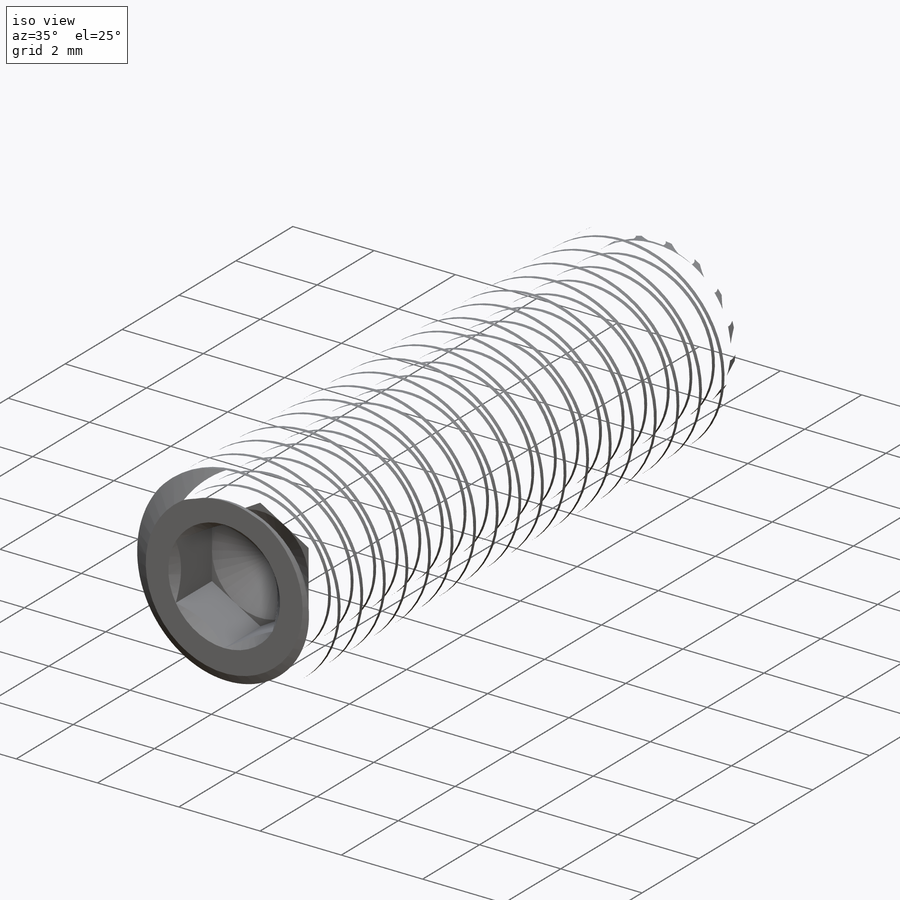
[diagram: iso view]
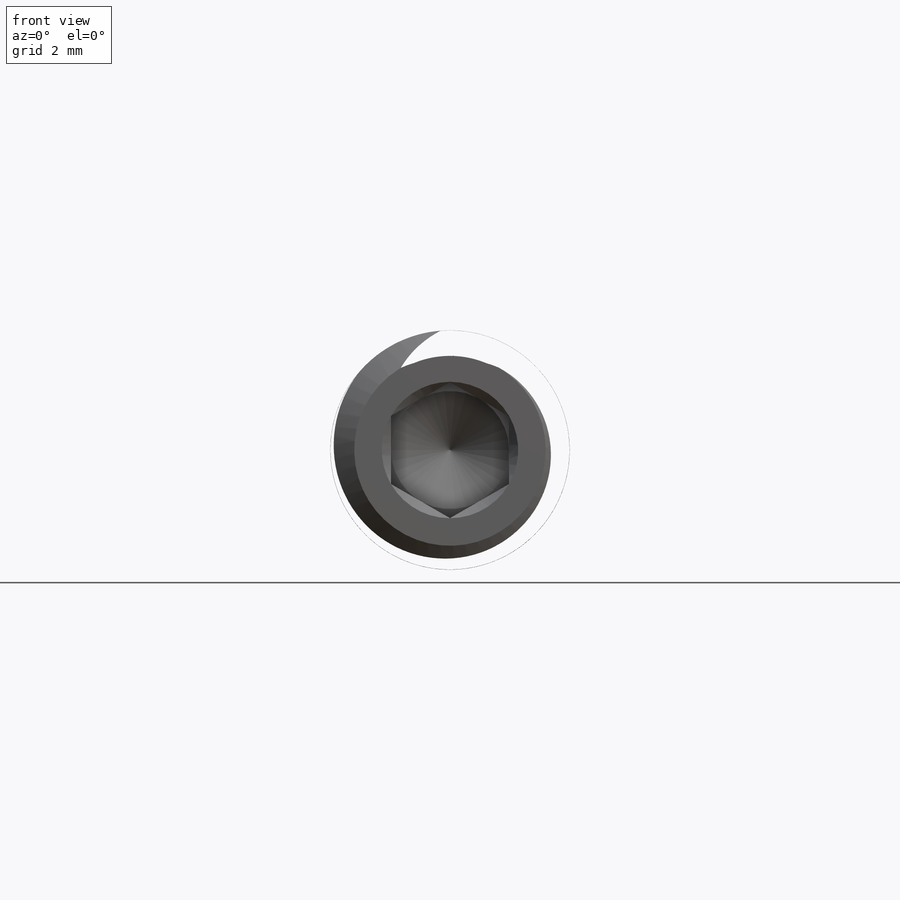
[diagram: front view]
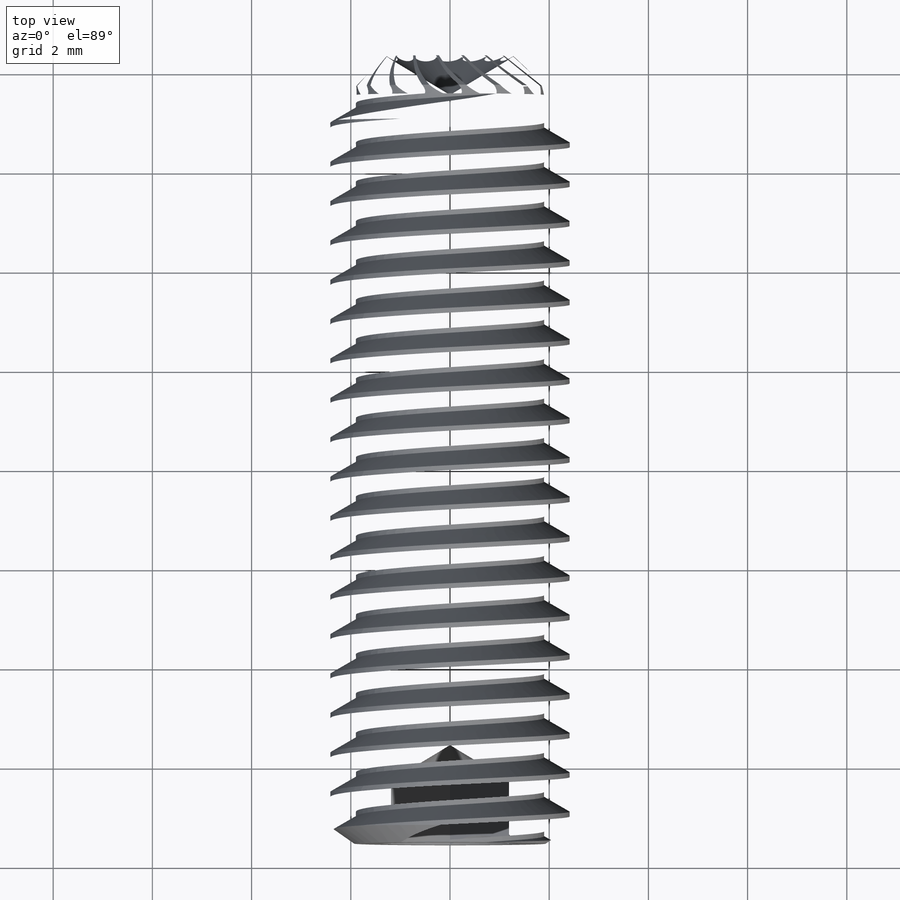
[diagram: top view]
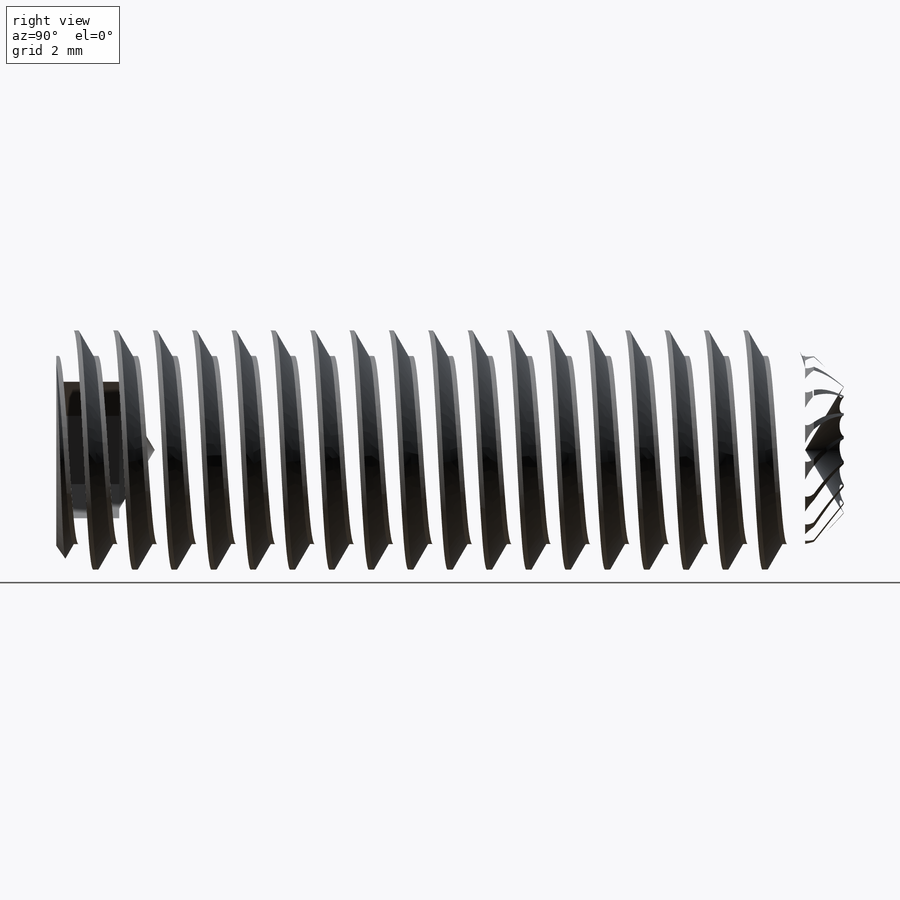
[diagram: right view]
SOLIDWORKS PART (.sldprt)
format: sldprt  version: not decoded by parser v0  size: 1,411,072 bytes
history: native  units: mm
features: sketch x11, cut_extrude x4, plane x2, helix x2, material x1, revolve x1, sweep x1, pattern_circular x1 (+14 scaffold rows collapsed; 3 parser-record rows omitted)
feature tree (40):
  scaffold x14  (default folders/planes/origin — collapsed)
  material  "Alloy Steel"
  sketch  "Sketch1"  dims[c1.Screw Dia=4.826mm c1.Length=15.875mm c1.D3=~0.472649mm c1.Head Angle=35.0deg c1.Cup Point Dia=2.5908mm c1.D5=~1.43605mm c1.Cup Angle=118.0deg c1.D6=1.4986mm c1.Point Angle=45.0deg c1.Head Dia=3.8608mm c1.D1=1.1176mm c1.D2=~1.580525mm c2.D3=1.2954mm c2.D4=1.2954mm c3.D3=1.2954mm c3.D1=~0.778355mm]
  revolve  "Revolve1"  Angle=360deg
  parser-record x3  (decoder bookkeeping rows leaked as tree rows — omitted from the tree; the rows remain in map.json)
  sketch  "Sketch2"  dims[Hex=~2.38125mm]
  cut_extrude  "Cut-Extrude1"  Depth=1.27mm Hex Depth=1.27mm
  sketch  "Sketch3"
  cut_extrude  "Cut-Extrude2"  [1 undecoded]
  sketch  "Sketch4"
  cut_extrude  "Cut-Extrude3"  [1 undecoded]
  plane  "Plane1"
  plane  "Plane2"
  sketch  "Sketch6"
  helix  "Helix/Spiral1"  Pitch=16.66875mm Lenght=16.66875mm
  sketch  "Sketch7"  dims[c1.D1=~1.551984mm c2.D1=60.0deg c2.D2=0.3125mm c2.D3=~0.15625mm c2.Pitch=~1.953846mm c2.D4=0.508mm c2.D5=0.508mm c3.Pitch=1.25mm c3.D1=10.0mm c4.D1=~8.390381deg c5.D1=1.25mm c5.D2=~1.231583mm c6.D2=90.0deg c7.D2=~1.573443mm c8.D2=60.0deg c8.D3=0.313mm c8.D4=~0.15625mm c8.Pitch=1.5875mm c9.D2=~1.674161mm c10.D2=60.0deg c11.D2=~0.099219mm c11.D3=~1.501533mm c11.A=60.0deg c11.D1=1.5875mm c11.D4=~0.15625mm c11.D5=~0.988019mm c11.D6=~0.15625mm c12.D5=~0.158146mm c12.D6=~0.158146mm c13.D5=~0.158146mm c13.D6=~0.158146mm c13.D4=~0.15625mm c14.D5=~0.15625mm c14.D6=~0.975586mm c15.D5=~0.988019mm c15.D4=~0.198437mm c15.D1=1.5875mm c15.D3=~0.94023mm c15.Pitch=~1.869173mm c16.D1=~1.869173mm c16.Pitch=~0.79375mm c16.A=~65.729265deg c17.D1=~119.247592deg c17.D3=~119.247592deg c18.D1=~119.247592deg c18.D3=~119.247592deg c19.D1=~119.247592deg c19.A=~119.247592deg c20.D1=~1.178573mm c21.D1=60.0deg c22.D1=~1.240965mm c22.A=60.0deg c22.D3=~0.694531mm]
  sweep  "Cut-Sweep1"
  sketch  "Sketch8"
  cut_extrude  "Extrude1"  [1 undecoded]
  sketch  "Sketch9"
  helix  "Helix/Spiral2"  Pitch=0.778355mm Height=0.778355mm Revolutions=0.0625
  sketch  "Sketch10"  dims[c1.D1=~2.304464mm c2.D1=20.0deg]
  sketch  "Sketch11"
  pattern_circular  "CirPattern1"  Count=16 Angle=360deg
  sketch  "Sketch0"  dims[D1=~2.38125mm]
decode coverage: 10 of 20 modeling features carry decoded parameters
note: ~ marks probable driven/reference dimensions
note: 3 parameter values undecoded
summary: no parameter record found for 3 features
note: suppression state not decoded; provenance and decode notes live in map.json
